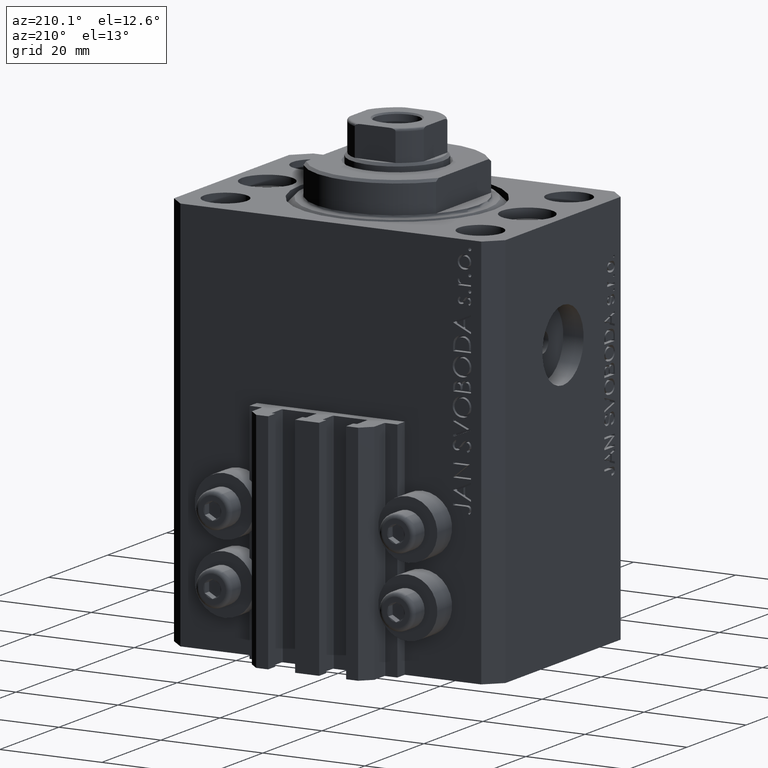
[diagram: clean part render]
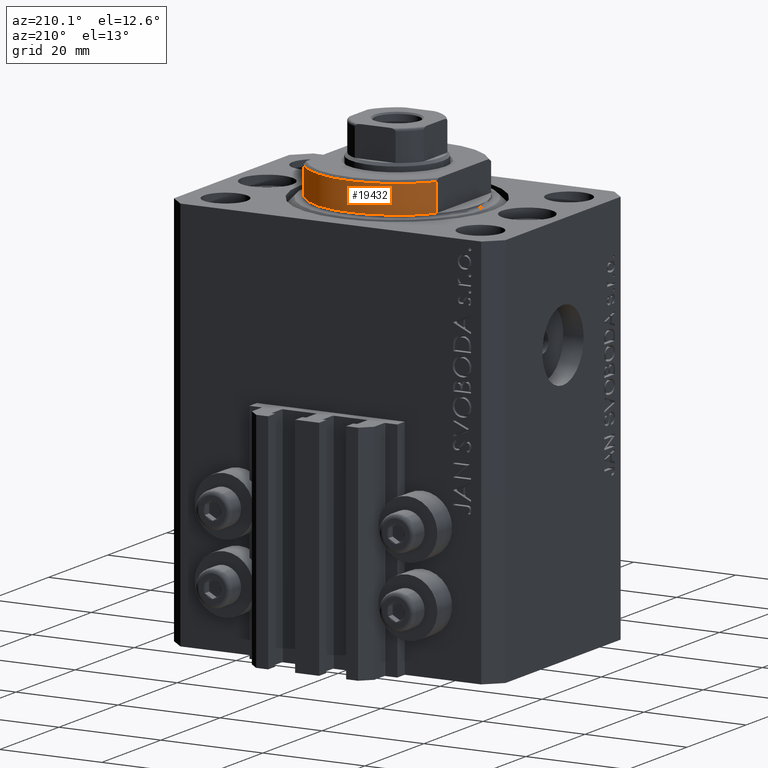
[diagram: same view with one face highlighted and labeled with its STEP entity id]
A machine part, auxiliary view. The second image highlights one B-rep face of the part: STEP entity #19432.
In plain terms, the highlighted cylindrical surface (partial cylindrical patch) has radius 16 mm, axis along (0, 0, -1).
Its self-contained STEP definition (entity closure, byte-faithful):
#327 = DIRECTION ( 'NONE',  ( -0.000000000000000000, -0.000000000000000000, 1.000000000000000000 ) ) ;
#1324 = VERTEX_POINT ( 'NONE', #32581 ) ;
#6807 = AXIS2_PLACEMENT_3D ( 'NONE', #23735, #38287, #37803 ) ;
#6966 = CARTESIAN_POINT ( 'NONE',  ( 13.00000000000000000, 9.327379053088813876, -6.500000000000000000 ) ) ;
#8776 = CARTESIAN_POINT ( 'NONE',  ( 0.000000000000000000, 0.000000000000000000, -6.000000000000030198 ) ) ;
#9299 = CARTESIAN_POINT ( 'NONE',  ( -13.00000000000000000, 9.327379053088813876, -6.500000000000000000 ) ) ;
#9939 = CIRCLE ( 'NONE', #36640, 16.00000000000000000 ) ;
#12208 = CARTESIAN_POINT ( 'NONE',  ( 13.00000000000000000, 9.327379053088916905, -6.000000000000021316 ) ) ;
#12245 = ORIENTED_EDGE ( 'NONE', *, *, #25153, .T. ) ;
#14751 = ORIENTED_EDGE ( 'NONE', *, *, #26367, .T. ) ;
#16219 = VERTEX_POINT ( 'NONE', #22943 ) ;
#18396 = EDGE_LOOP ( 'NONE', ( #26699, #14751, #21398, #12245 ) ) ;
#19432 = ADVANCED_FACE ( 'NONE', ( #41397 ), #30170, .T. ) ;
#21398 = ORIENTED_EDGE ( 'NONE', *, *, #37759, .T. ) ;
#22861 = AXIS2_PLACEMENT_3D ( 'NONE', #34875, #34145, #27712 ) ;
#22943 = CARTESIAN_POINT ( 'NONE',  ( 13.00000000000000000, 9.327379053088815652, -0.4999999999999995559 ) ) ;
#23735 = CARTESIAN_POINT ( 'NONE',  ( 0.000000000000000000, 0.000000000000000000, -6.500000000000000000 ) ) ;
#25153 = EDGE_CURVE ( 'NONE', #39013, #16219, #37348, .T. ) ;
#25505 = VECTOR ( 'NONE', #327, 1000.000000000000000 ) ;
#25916 = EDGE_CURVE ( 'NONE', #36645, #16219, #32514, .T. ) ;
#26367 = EDGE_CURVE ( 'NONE', #36645, #1324, #9939, .T. ) ;
#26468 = DIRECTION ( 'NONE',  ( -1.000000000000000000, 0.000000000000000000, 0.000000000000000000 ) ) ;
#26699 = ORIENTED_EDGE ( 'NONE', *, *, #25916, .F. ) ;
#27712 = DIRECTION ( 'NONE',  ( 1.000000000000000000, -8.881784197001252323E-16, 0.000000000000000000 ) ) ;
#30100 = CARTESIAN_POINT ( 'NONE',  ( -13.00000000000000000, 9.327379053088815652, -0.4999999999999995559 ) ) ;
#30170 = CYLINDRICAL_SURFACE ( 'NONE', #6807, 16.00000000000000000 ) ;
#32514 = LINE ( 'NONE', #6966, #37411 ) ;
#32581 = CARTESIAN_POINT ( 'NONE',  ( -13.00000000000000000, 9.327379053088916905, -6.000000000000021316 ) ) ;
#34145 = DIRECTION ( 'NONE',  ( -0.000000000000000000, -0.000000000000000000, -1.000000000000000000 ) ) ;
#34331 = DIRECTION ( 'NONE',  ( 0.000000000000000000, 0.000000000000000000, 1.000000000000000000 ) ) ;
#34875 = CARTESIAN_POINT ( 'NONE',  ( 0.000000000000000000, 0.000000000000000000, -0.4999999999999995559 ) ) ;
#36640 = AXIS2_PLACEMENT_3D ( 'NONE', #8776, #34331, #26468 ) ;
#36645 = VERTEX_POINT ( 'NONE', #12208 ) ;
#37348 = CIRCLE ( 'NONE', #22861, 16.00000000000000000 ) ;
#37411 = VECTOR ( 'NONE', #43980, 1000.000000000000000 ) ;
#37759 = EDGE_CURVE ( 'NONE', #1324, #39013, #41785, .T. ) ;
#37803 = DIRECTION ( 'NONE',  ( 1.000000000000000000, 0.000000000000000000, 0.000000000000000000 ) ) ;
#38287 = DIRECTION ( 'NONE',  ( -0.000000000000000000, -0.000000000000000000, 1.000000000000000000 ) ) ;
#39013 = VERTEX_POINT ( 'NONE', #30100 ) ;
#41397 = FACE_OUTER_BOUND ( 'NONE', #18396, .T. ) ;
#41785 = LINE ( 'NONE', #9299, #25505 ) ;
#43980 = DIRECTION ( 'NONE',  ( -0.000000000000000000, -0.000000000000000000, 1.000000000000000000 ) ) ;